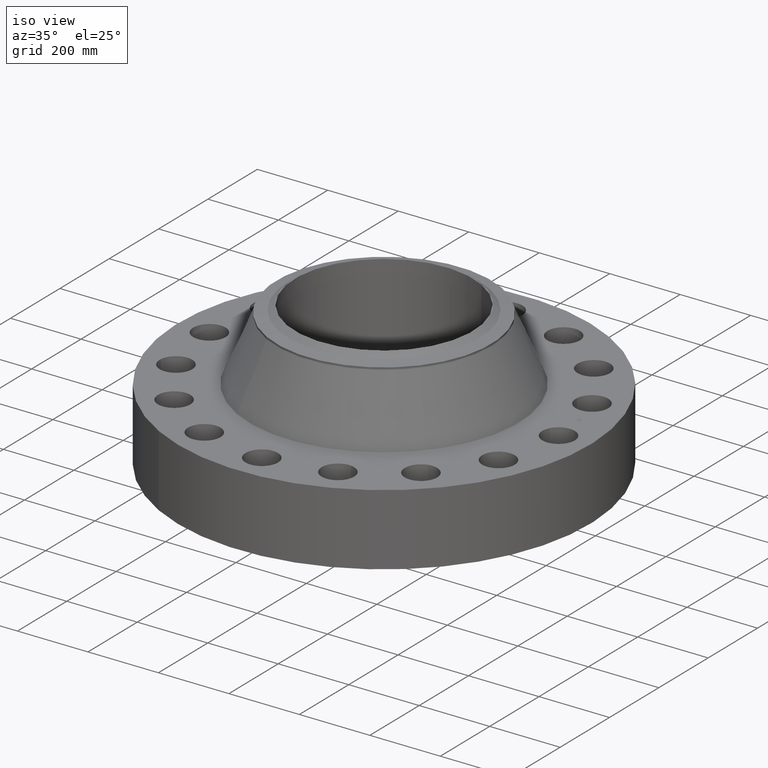
[diagram: clean part render]
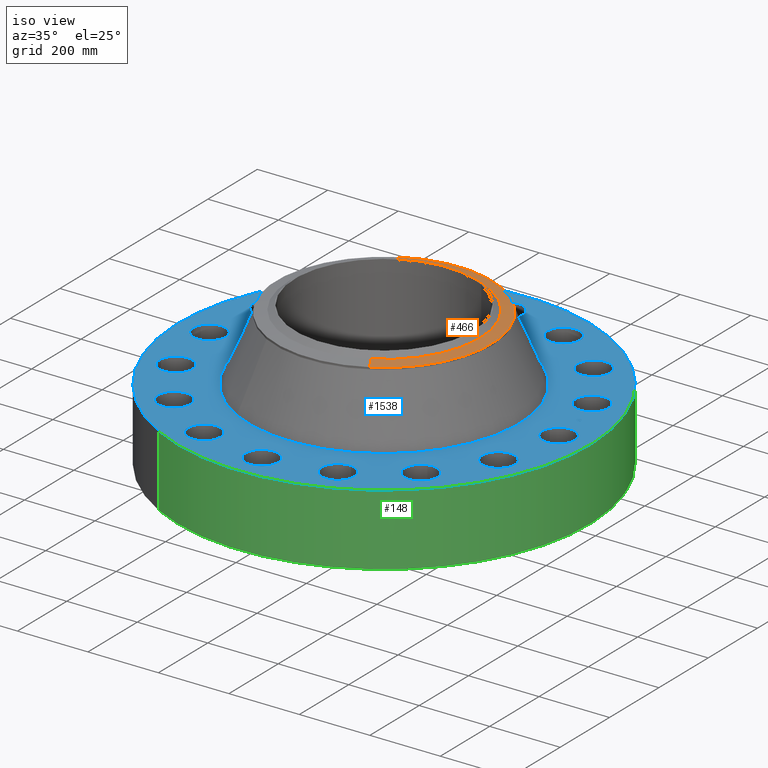
[diagram: same view with three faces highlighted in distinct colors, each labeled with its STEP entity id]
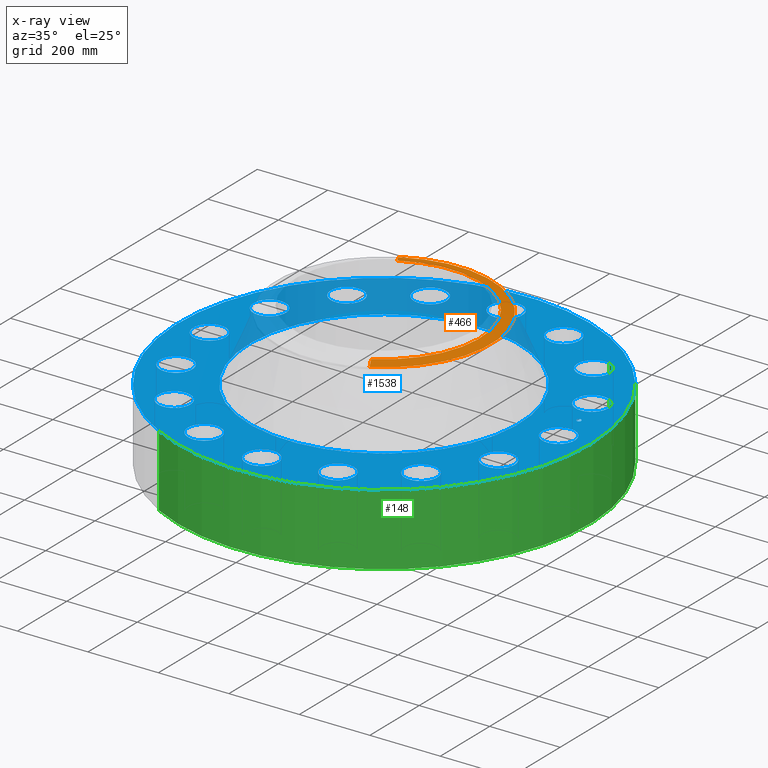
[diagram: x-ray of the same camera — body ghosted, the three highlighted faces saturated]
A machine part, iso view with three faces highlighted in distinct colors.
The next image is the same camera in x-ray (body ghosted, the three faces saturated) — at least one of them is partly hidden behind the body in this view.
Their STEP definitions:

[orange] entity #466 — the highlighted conical surface has half-angle 80 deg.
#270=AXIS2_PLACEMENT_3D('Circle Axis2P3D',#268,#269,$) ;
#297=AXIS2_PLACEMENT_3D('Circle Axis2P3D',#295,#296,$) ;
#311=AXIS2_PLACEMENT_3D('Cone Axis2P3D',#308,#309,#310) ;
#409=AXIS2_PLACEMENT_3D('Circle Axis2P3D',#407,#408,$) ;
#265=CARTESIAN_POINT('Vertex',(5.75310646327,10.5309907427,15.2547465941)) ;
#268=CARTESIAN_POINT('Axis2P3D Location',(0.,0.,15.2547465941)) ;
#272=CARTESIAN_POINT('Vertex',(5.75310646327,-10.5309907427,15.2547465941)) ;
#292=CARTESIAN_POINT('Vertex',(-5.75310646327,10.5309907427,15.2547465941)) ;
#295=CARTESIAN_POINT('Axis2P3D Location',(0.,0.,15.2547465941)) ;
#308=CARTESIAN_POINT('Axis2P3D Location',(0.,0.,15.4814160193)) ;
#313=CARTESIAN_POINT('Line Origine',(5.44495421449,-9.96692183492,15.3680813067)) ;
#317=CARTESIAN_POINT('Vertex',(5.13680196571,-9.40285292711,15.4814160193)) ;
#324=CARTESIAN_POINT('Vertex',(-5.13680196571,9.40285292711,15.4814160193)) ;
#327=CARTESIAN_POINT('Line Origine',(-5.44495421449,9.96692183492,15.3680813067)) ;
#407=CARTESIAN_POINT('Axis2P3D Location',(0.,0.,15.4814160193)) ;
#269=DIRECTION('Axis2P3D Direction',(0.,0.,-0.0393700787402)) ;
#296=DIRECTION('Axis2P3D Direction',(0.,0.,-0.0393700787402)) ;
#309=DIRECTION('Axis2P3D Direction',(-0.,-0.,-0.0393700787402)) ;
#310=DIRECTION('Axis2P3D XDirection',(-0.0188750212049,0.0345504945626,0.)) ;
#314=DIRECTION('Vector Direction',(0.0185882672208,-0.0340255949157,-0.00683654242783)) ;
#328=DIRECTION('Vector Direction',(-0.0185882672208,0.0340255949157,-0.00683654242783)) ;
#408=DIRECTION('Axis2P3D Direction',(0.,0.,0.0393700787402)) ;
#315=VECTOR('Line Direction',#314,0.0393700787402) ;
#329=VECTOR('Line Direction',#328,0.0393700787402) ;
#460=ORIENTED_EDGE('',*,*,#331,.F.) ;
#461=ORIENTED_EDGE('',*,*,#411,.F.) ;
#462=ORIENTED_EDGE('',*,*,#319,.T.) ;
#463=ORIENTED_EDGE('',*,*,#274,.T.) ;
#464=ORIENTED_EDGE('',*,*,#299,.F.) ;
#466=ADVANCED_FACE('PartBody',(#465),#312,.T.) ;
#271=CIRCLE('generated circle',#270,12.) ;
#298=CIRCLE('generated circle',#297,12.) ;
#410=CIRCLE('generated circle',#409,10.71449381) ;
#312=CONICAL_SURFACE('Cone',#311,10.71449381,1.3962634016) ;
#274=EDGE_CURVE('',#273,#266,#271,.F.) ;
#299=EDGE_CURVE('',#293,#266,#298,.T.) ;
#319=EDGE_CURVE('',#318,#273,#316,.T.) ;
#331=EDGE_CURVE('',#325,#293,#330,.T.) ;
#411=EDGE_CURVE('',#318,#325,#410,.T.) ;
#459=EDGE_LOOP('',(#460,#461,#462,#463,#464)) ;
#465=FACE_OUTER_BOUND('',#459,.T.) ;
#316=LINE('Line',#313,#315) ;
#330=LINE('Line',#327,#329) ;
#266=VERTEX_POINT('',#265) ;
#273=VERTEX_POINT('',#272) ;
#293=VERTEX_POINT('',#292) ;
#318=VERTEX_POINT('',#317) ;
#325=VERTEX_POINT('',#324) ;

[blue] entity #1538 — the highlighted planar face has unit normal (0, 0, -1).
#65=AXIS2_PLACEMENT_3D('Circle Axis2P3D',#63,#64,$) ;
#82=AXIS2_PLACEMENT_3D('Circle Axis2P3D',#80,#81,$) ;
#115=AXIS2_PLACEMENT_3D('Circle Axis2P3D',#113,#114,$) ;
#139=AXIS2_PLACEMENT_3D('Circle Axis2P3D',#137,#138,$) ;
#156=AXIS2_PLACEMENT_3D('Circle Axis2P3D',#154,#155,$) ;
#191=AXIS2_PLACEMENT_3D('Circle Axis2P3D',#189,#190,$) ;
#819=AXIS2_PLACEMENT_3D('Circle Axis2P3D',#817,#818,$) ;
#831=AXIS2_PLACEMENT_3D('Circle Axis2P3D',#829,#830,$) ;
#862=AXIS2_PLACEMENT_3D('Circle Axis2P3D',#860,#861,$) ;
#874=AXIS2_PLACEMENT_3D('Circle Axis2P3D',#872,#873,$) ;
#905=AXIS2_PLACEMENT_3D('Circle Axis2P3D',#903,#904,$) ;
#917=AXIS2_PLACEMENT_3D('Circle Axis2P3D',#915,#916,$) ;
#948=AXIS2_PLACEMENT_3D('Circle Axis2P3D',#946,#947,$) ;
#960=AXIS2_PLACEMENT_3D('Circle Axis2P3D',#958,#959,$) ;
#991=AXIS2_PLACEMENT_3D('Circle Axis2P3D',#989,#990,$) ;
#1003=AXIS2_PLACEMENT_3D('Circle Axis2P3D',#1001,#1002,$) ;
#1034=AXIS2_PLACEMENT_3D('Circle Axis2P3D',#1032,#1033,$) ;
#1046=AXIS2_PLACEMENT_3D('Circle Axis2P3D',#1044,#1045,$) ;
#1077=AXIS2_PLACEMENT_3D('Circle Axis2P3D',#1075,#1076,$) ;
#1089=AXIS2_PLACEMENT_3D('Circle Axis2P3D',#1087,#1088,$) ;
#1120=AXIS2_PLACEMENT_3D('Circle Axis2P3D',#1118,#1119,$) ;
#1132=AXIS2_PLACEMENT_3D('Circle Axis2P3D',#1130,#1131,$) ;
#1163=AXIS2_PLACEMENT_3D('Circle Axis2P3D',#1161,#1162,$) ;
#1175=AXIS2_PLACEMENT_3D('Circle Axis2P3D',#1173,#1174,$) ;
#1206=AXIS2_PLACEMENT_3D('Circle Axis2P3D',#1204,#1205,$) ;
#1218=AXIS2_PLACEMENT_3D('Circle Axis2P3D',#1216,#1217,$) ;
#1249=AXIS2_PLACEMENT_3D('Circle Axis2P3D',#1247,#1248,$) ;
#1261=AXIS2_PLACEMENT_3D('Circle Axis2P3D',#1259,#1260,$) ;
#1292=AXIS2_PLACEMENT_3D('Circle Axis2P3D',#1290,#1291,$) ;
#1304=AXIS2_PLACEMENT_3D('Circle Axis2P3D',#1302,#1303,$) ;
#1335=AXIS2_PLACEMENT_3D('Circle Axis2P3D',#1333,#1334,$) ;
#1347=AXIS2_PLACEMENT_3D('Circle Axis2P3D',#1345,#1346,$) ;
#1378=AXIS2_PLACEMENT_3D('Circle Axis2P3D',#1376,#1377,$) ;
#1390=AXIS2_PLACEMENT_3D('Circle Axis2P3D',#1388,#1389,$) ;
#1421=AXIS2_PLACEMENT_3D('Circle Axis2P3D',#1419,#1420,$) ;
#1433=AXIS2_PLACEMENT_3D('Circle Axis2P3D',#1431,#1432,$) ;
#1446=AXIS2_PLACEMENT_3D('Plane Axis2P3D',#1443,#1444,#1445) ;
#1522=AXIS2_PLACEMENT_3D('Circle Axis2P3D',#1520,#1521,$) ;
#1531=AXIS2_PLACEMENT_3D('Circle Axis2P3D',#1529,#1530,$) ;
#46=CARTESIAN_POINT('Vertex',(17.9071876502,0.87015735257,8.00000000003)) ;
#60=CARTESIAN_POINT('Vertex',(21.0928123499,-0.87015735257,8.00000000003)) ;
#63=CARTESIAN_POINT('Axis2P3D Location',(19.5000000001,0.,8.00000000003)) ;
#80=CARTESIAN_POINT('Axis2P3D Location',(19.5000000001,0.,8.00000000003)) ;
#110=CARTESIAN_POINT('Vertex',(-11.0267873879,-20.1843989236,8.00000000003)) ;
#113=CARTESIAN_POINT('Axis2P3D Location',(0.,0.,8.00000000003)) ;
#117=CARTESIAN_POINT('Vertex',(11.0267873879,20.1843989236,8.00000000003)) ;
#137=CARTESIAN_POINT('Axis2P3D Location',(0.,0.,8.00000000003)) ;
#154=CARTESIAN_POINT('Axis2P3D Location',(0.,0.,8.00000000003)) ;
#158=CARTESIAN_POINT('Vertex',(7.22935831592,13.2332516331,8.00000000003)) ;
#160=CARTESIAN_POINT('Vertex',(-7.22935831592,-13.2332516331,8.00000000003)) ;
#189=CARTESIAN_POINT('Axis2P3D Location',(0.,0.,8.00000000003)) ;
#807=CARTESIAN_POINT('Vertex',(-16.8770789573,6.0488634659,8.00000000003)) ;
#814=CARTESIAN_POINT('Vertex',(-19.1542228108,8.8757903964,8.00000000003)) ;
#817=CARTESIAN_POINT('Axis2P3D Location',(-18.015650884,7.46232693115,8.00000000003)) ;
#829=CARTESIAN_POINT('Axis2P3D Location',(-18.015650884,7.46232693115,8.00000000003)) ;
#850=CARTESIAN_POINT('Vertex',(13.2775879842,-12.0469996548,8.00000000003)) ;
#857=CARTESIAN_POINT('Vertex',(14.2995764822,-15.5301648116,8.00000000003)) ;
#860=CARTESIAN_POINT('Axis2P3D Location',(13.7885822332,-13.7885822332,8.00000000003)) ;
#872=CARTESIAN_POINT('Axis2P3D Location',(13.7885822332,-13.7885822332,8.00000000003)) ;
#893=CARTESIAN_POINT('Vertex',(-13.2775879842,12.0469996548,8.00000000003)) ;
#900=CARTESIAN_POINT('Vertex',(-14.2995764822,15.5301648116,8.00000000003)) ;
#903=CARTESIAN_POINT('Axis2P3D Location',(-13.7885822332,13.7885822332,8.00000000003)) ;
#915=CARTESIAN_POINT('Axis2P3D Location',(-13.7885822332,13.7885822332,8.00000000003)) ;
#936=CARTESIAN_POINT('Vertex',(7.6567046021,-16.2110893525,8.00000000003)) ;
#943=CARTESIAN_POINT('Vertex',(7.26794926019,-19.8202124156,8.00000000003)) ;
#946=CARTESIAN_POINT('Axis2P3D Location',(7.46232693115,-18.015650884,8.00000000003)) ;
#958=CARTESIAN_POINT('Axis2P3D Location',(7.46232693115,-18.015650884,8.00000000003)) ;
#979=CARTESIAN_POINT('Vertex',(-7.6567046021,16.2110893525,8.00000000003)) ;
#986=CARTESIAN_POINT('Vertex',(-7.26794926019,19.8202124156,8.00000000003)) ;
#989=CARTESIAN_POINT('Axis2P3D Location',(-7.46232693115,18.015650884,8.00000000003)) ;
#1001=CARTESIAN_POINT('Axis2P3D Location',(-7.46232693115,18.015650884,8.00000000003)) ;
#1022=CARTESIAN_POINT('Vertex',(0.87015735257,-17.9071876502,8.00000000003)) ;
#1029=CARTESIAN_POINT('Vertex',(-0.87015735257,-21.0928123499,8.00000000003)) ;
#1032=CARTESIAN_POINT('Axis2P3D Location',(-1.04389924724E-015,-19.5000000001,8.00000000003)) ;
#1044=CARTESIAN_POINT('Axis2P3D Location',(-1.04389924724E-015,-19.5000000001,8.00000000003)) ;
#1065=CARTESIAN_POINT('Vertex',(-0.87015735257,17.9071876502,8.00000000003)) ;
#1072=CARTESIAN_POINT('Vertex',(0.87015735257,21.0928123499,8.00000000003)) ;
#1075=CARTESIAN_POINT('Axis2P3D Location',(-1.34416201111E-015,19.5000000001,8.00000000003)) ;
#1087=CARTESIAN_POINT('Axis2P3D Location',(-1.34416201111E-015,19.5000000001,8.00000000003)) ;
#1108=CARTESIAN_POINT('Vertex',(-6.0488634659,-16.8770789573,8.00000000003)) ;
#1115=CARTESIAN_POINT('Vertex',(-8.8757903964,-19.1542228108,8.00000000003)) ;
#1118=CARTESIAN_POINT('Axis2P3D Location',(-7.46232693115,-18.015650884,8.00000000003)) ;
#1130=CARTESIAN_POINT('Axis2P3D Location',(-7.46232693115,-18.015650884,8.00000000003)) ;
#1151=CARTESIAN_POINT('Vertex',(6.0488634659,16.8770789573,8.00000000003)) ;
#1158=CARTESIAN_POINT('Vertex',(8.8757903964,19.1542228108,8.00000000003)) ;
#1161=CARTESIAN_POINT('Axis2P3D Location',(7.46232693115,18.015650884,8.00000000003)) ;
#1173=CARTESIAN_POINT('Axis2P3D Location',(7.46232693115,18.015650884,8.00000000003)) ;
#1194=CARTESIAN_POINT('Vertex',(-12.0469996548,-13.2775879842,8.00000000003)) ;
#1201=CARTESIAN_POINT('Vertex',(-15.5301648116,-14.2995764822,8.00000000003)) ;
#1204=CARTESIAN_POINT('Axis2P3D Location',(-13.7885822332,-13.7885822332,8.00000000003)) ;
#1216=CARTESIAN_POINT('Axis2P3D Location',(-13.7885822332,-13.7885822332,8.00000000003)) ;
#1237=CARTESIAN_POINT('Vertex',(12.0469996548,13.2775879842,8.00000000003)) ;
#1244=CARTESIAN_POINT('Vertex',(15.5301648116,14.2995764822,8.00000000003)) ;
#1247=CARTESIAN_POINT('Axis2P3D Location',(13.7885822332,13.7885822332,8.00000000003)) ;
#1259=CARTESIAN_POINT('Axis2P3D Location',(13.7885822332,13.7885822332,8.00000000003)) ;
#1280=CARTESIAN_POINT('Vertex',(-16.2110893525,-7.6567046021,8.00000000003)) ;
#1287=CARTESIAN_POINT('Vertex',(-19.8202124156,-7.26794926019,8.00000000003)) ;
#1290=CARTESIAN_POINT('Axis2P3D Location',(-18.015650884,-7.46232693115,8.00000000003)) ;
#1302=CARTESIAN_POINT('Axis2P3D Location',(-18.015650884,-7.46232693115,8.00000000003)) ;
#1323=CARTESIAN_POINT('Vertex',(16.2110893525,7.6567046021,8.00000000003)) ;
#1330=CARTESIAN_POINT('Vertex',(19.8202124156,7.26794926019,8.00000000003)) ;
#1333=CARTESIAN_POINT('Axis2P3D Location',(18.015650884,7.46232693115,8.00000000003)) ;
#1345=CARTESIAN_POINT('Axis2P3D Location',(18.015650884,7.46232693115,8.00000000003)) ;
#1366=CARTESIAN_POINT('Vertex',(-17.9071876502,-0.87015735257,8.00000000003)) ;
#1373=CARTESIAN_POINT('Vertex',(-21.0928123499,0.87015735257,8.00000000003)) ;
#1376=CARTESIAN_POINT('Axis2P3D Location',(-19.5000000001,-2.38806125835E-015,8.00000000003)) ;
#1388=CARTESIAN_POINT('Axis2P3D Location',(-19.5000000001,-2.38806125835E-015,8.00000000003)) ;
#1409=CARTESIAN_POINT('Vertex',(16.8770789573,-6.0488634659,8.00000000003)) ;
#1416=CARTESIAN_POINT('Vertex',(19.1542228108,-8.8757903964,8.00000000003)) ;
#1419=CARTESIAN_POINT('Axis2P3D Location',(18.015650884,-7.46232693115,8.00000000003)) ;
#1431=CARTESIAN_POINT('Axis2P3D Location',(18.015650884,-7.46232693115,8.00000000003)) ;
#1443=CARTESIAN_POINT('Axis2P3D Location',(0.,23.0000000001,8.00000000003)) ;
#1520=CARTESIAN_POINT('Axis2P3D Location',(19.1253129679,3.80426127933,8.00000000003)) ;
#1524=CARTESIAN_POINT('Vertex',(19.0770281132,4.04700563623,8.00000000003)) ;
#1526=CARTESIAN_POINT('Vertex',(19.1735978226,3.56151692243,8.00000000003)) ;
#1529=CARTESIAN_POINT('Axis2P3D Location',(19.1253129679,3.80426127933,8.00000000003)) ;
#64=DIRECTION('Axis2P3D Direction',(0.,-0.,-0.0393700787402)) ;
#81=DIRECTION('Axis2P3D Direction',(0.,-0.,-0.0393700787402)) ;
#114=DIRECTION('Axis2P3D Direction',(0.,0.,-0.0393700787402)) ;
#138=DIRECTION('Axis2P3D Direction',(0.,0.,-0.0393700787402)) ;
#155=DIRECTION('Axis2P3D Direction',(0.,0.,-0.0393700787402)) ;
#190=DIRECTION('Axis2P3D Direction',(0.,0.,-0.0393700787402)) ;
#818=DIRECTION('Axis2P3D Direction',(0.,0.,-0.0393700787402)) ;
#830=DIRECTION('Axis2P3D Direction',(0.,0.,-0.0393700787402)) ;
#861=DIRECTION('Axis2P3D Direction',(0.,-0.,-0.0393700787402)) ;
#873=DIRECTION('Axis2P3D Direction',(0.,-0.,-0.0393700787402)) ;
#904=DIRECTION('Axis2P3D Direction',(0.,0.,-0.0393700787402)) ;
#916=DIRECTION('Axis2P3D Direction',(0.,0.,-0.0393700787402)) ;
#947=DIRECTION('Axis2P3D Direction',(0.,-0.,-0.0393700787402)) ;
#959=DIRECTION('Axis2P3D Direction',(0.,-0.,-0.0393700787402)) ;
#990=DIRECTION('Axis2P3D Direction',(0.,0.,-0.0393700787402)) ;
#1002=DIRECTION('Axis2P3D Direction',(0.,0.,-0.0393700787402)) ;
#1033=DIRECTION('Axis2P3D Direction',(0.,-0.,-0.0393700787402)) ;
#1045=DIRECTION('Axis2P3D Direction',(0.,-0.,-0.0393700787402)) ;
#1076=DIRECTION('Axis2P3D Direction',(0.,0.,-0.0393700787402)) ;
#1088=DIRECTION('Axis2P3D Direction',(0.,0.,-0.0393700787402)) ;
#1119=DIRECTION('Axis2P3D Direction',(-0.,0.,-0.0393700787402)) ;
#1131=DIRECTION('Axis2P3D Direction',(-0.,0.,-0.0393700787402)) ;
#1162=DIRECTION('Axis2P3D Direction',(0.,0.,-0.0393700787402)) ;
#1174=DIRECTION('Axis2P3D Direction',(0.,0.,-0.0393700787402)) ;
#1205=DIRECTION('Axis2P3D Direction',(-0.,0.,-0.0393700787402)) ;
#1217=DIRECTION('Axis2P3D Direction',(-0.,0.,-0.0393700787402)) ;
#1248=DIRECTION('Axis2P3D Direction',(0.,0.,-0.0393700787402)) ;
#1260=DIRECTION('Axis2P3D Direction',(0.,0.,-0.0393700787402)) ;
#1291=DIRECTION('Axis2P3D Direction',(-0.,0.,-0.0393700787402)) ;
#1303=DIRECTION('Axis2P3D Direction',(-0.,0.,-0.0393700787402)) ;
#1334=DIRECTION('Axis2P3D Direction',(0.,0.,-0.0393700787402)) ;
#1346=DIRECTION('Axis2P3D Direction',(0.,0.,-0.0393700787402)) ;
#1377=DIRECTION('Axis2P3D Direction',(-0.,0.,-0.0393700787402)) ;
#1389=DIRECTION('Axis2P3D Direction',(-0.,0.,-0.0393700787402)) ;
#1420=DIRECTION('Axis2P3D Direction',(0.,-0.,-0.0393700787402)) ;
#1432=DIRECTION('Axis2P3D Direction',(0.,-0.,-0.0393700787402)) ;
#1444=DIRECTION('Axis2P3D Direction',(0.,0.,-0.0393700787402)) ;
#1445=DIRECTION('Axis2P3D XDirection',(0.0393700787402,0.,0.)) ;
#1521=DIRECTION('Axis2P3D Direction',(0.,0.,-0.0393700787402)) ;
#1530=DIRECTION('Axis2P3D Direction',(0.,0.,-0.0393700787402)) ;
#1449=ORIENTED_EDGE('',*,*,#141,.F.) ;
#1450=ORIENTED_EDGE('',*,*,#119,.F.) ;
#1453=ORIENTED_EDGE('',*,*,#67,.T.) ;
#1454=ORIENTED_EDGE('',*,*,#84,.T.) ;
#1457=ORIENTED_EDGE('',*,*,#193,.T.) ;
#1458=ORIENTED_EDGE('',*,*,#162,.T.) ;
#1461=ORIENTED_EDGE('',*,*,#1435,.T.) ;
#1462=ORIENTED_EDGE('',*,*,#1423,.T.) ;
#1465=ORIENTED_EDGE('',*,*,#876,.T.) ;
#1466=ORIENTED_EDGE('',*,*,#864,.T.) ;
#1469=ORIENTED_EDGE('',*,*,#962,.T.) ;
#1470=ORIENTED_EDGE('',*,*,#950,.T.) ;
#1473=ORIENTED_EDGE('',*,*,#1048,.T.) ;
#1474=ORIENTED_EDGE('',*,*,#1036,.T.) ;
#1477=ORIENTED_EDGE('',*,*,#1134,.T.) ;
#1478=ORIENTED_EDGE('',*,*,#1122,.T.) ;
#1481=ORIENTED_EDGE('',*,*,#1220,.T.) ;
#1482=ORIENTED_EDGE('',*,*,#1208,.T.) ;
#1485=ORIENTED_EDGE('',*,*,#1306,.T.) ;
#1486=ORIENTED_EDGE('',*,*,#1294,.T.) ;
#1489=ORIENTED_EDGE('',*,*,#1392,.T.) ;
#1490=ORIENTED_EDGE('',*,*,#1380,.T.) ;
#1493=ORIENTED_EDGE('',*,*,#833,.T.) ;
#1494=ORIENTED_EDGE('',*,*,#821,.T.) ;
#1497=ORIENTED_EDGE('',*,*,#919,.T.) ;
#1498=ORIENTED_EDGE('',*,*,#907,.T.) ;
#1501=ORIENTED_EDGE('',*,*,#1005,.T.) ;
#1502=ORIENTED_EDGE('',*,*,#993,.T.) ;
#1505=ORIENTED_EDGE('',*,*,#1091,.T.) ;
#1506=ORIENTED_EDGE('',*,*,#1079,.T.) ;
#1509=ORIENTED_EDGE('',*,*,#1177,.T.) ;
#1510=ORIENTED_EDGE('',*,*,#1165,.T.) ;
#1513=ORIENTED_EDGE('',*,*,#1263,.T.) ;
#1514=ORIENTED_EDGE('',*,*,#1251,.T.) ;
#1517=ORIENTED_EDGE('',*,*,#1349,.T.) ;
#1518=ORIENTED_EDGE('',*,*,#1337,.T.) ;
#1535=ORIENTED_EDGE('',*,*,#1528,.T.) ;
#1536=ORIENTED_EDGE('',*,*,#1533,.T.) ;
#1455=FACE_BOUND('',#1452,.T.) ;
#1459=FACE_BOUND('',#1456,.T.) ;
#1463=FACE_BOUND('',#1460,.T.) ;
#1467=FACE_BOUND('',#1464,.T.) ;
#1471=FACE_BOUND('',#1468,.T.) ;
#1475=FACE_BOUND('',#1472,.T.) ;
#1479=FACE_BOUND('',#1476,.T.) ;
#1483=FACE_BOUND('',#1480,.T.) ;
#1487=FACE_BOUND('',#1484,.T.) ;
#1491=FACE_BOUND('',#1488,.T.) ;
#1495=FACE_BOUND('',#1492,.T.) ;
#1499=FACE_BOUND('',#1496,.T.) ;
#1503=FACE_BOUND('',#1500,.T.) ;
#1507=FACE_BOUND('',#1504,.T.) ;
#1511=FACE_BOUND('',#1508,.T.) ;
#1515=FACE_BOUND('',#1512,.T.) ;
#1519=FACE_BOUND('',#1516,.T.) ;
#1537=FACE_BOUND('',#1534,.T.) ;
#1538=ADVANCED_FACE('PartBody',(#1451,#1455,#1459,#1463,#1467,#1471,#1475,#1479,#1483,#1487,#1491,#1495,#1499,#1503,#1507,#1511,#1515,#1519,#1537),#1447,.F.) ;
#66=CIRCLE('generated circle',#65,1.81500000001) ;
#83=CIRCLE('generated circle',#82,1.81500000001) ;
#116=CIRCLE('generated circle',#115,23.0000000001) ;
#140=CIRCLE('generated circle',#139,23.0000000001) ;
#157=CIRCLE('generated circle',#156,15.0792098747) ;
#192=CIRCLE('generated circle',#191,15.0792098747) ;
#820=CIRCLE('generated circle',#819,1.81500000001) ;
#832=CIRCLE('generated circle',#831,1.81500000001) ;
#863=CIRCLE('generated circle',#862,1.81500000001) ;
#875=CIRCLE('generated circle',#874,1.81500000001) ;
#906=CIRCLE('generated circle',#905,1.81500000001) ;
#918=CIRCLE('generated circle',#917,1.81500000001) ;
#949=CIRCLE('generated circle',#948,1.81500000001) ;
#961=CIRCLE('generated circle',#960,1.81500000001) ;
#992=CIRCLE('generated circle',#991,1.81500000001) ;
#1004=CIRCLE('generated circle',#1003,1.81500000001) ;
#1035=CIRCLE('generated circle',#1034,1.81500000001) ;
#1047=CIRCLE('generated circle',#1046,1.81500000001) ;
#1078=CIRCLE('generated circle',#1077,1.81500000001) ;
#1090=CIRCLE('generated circle',#1089,1.81500000001) ;
#1121=CIRCLE('generated circle',#1120,1.81500000001) ;
#1133=CIRCLE('generated circle',#1132,1.81500000001) ;
#1164=CIRCLE('generated circle',#1163,1.81500000001) ;
#1176=CIRCLE('generated circle',#1175,1.81500000001) ;
#1207=CIRCLE('generated circle',#1206,1.81500000001) ;
#1219=CIRCLE('generated circle',#1218,1.81500000001) ;
#1250=CIRCLE('generated circle',#1249,1.81500000001) ;
#1262=CIRCLE('generated circle',#1261,1.81500000001) ;
#1293=CIRCLE('generated circle',#1292,1.81500000001) ;
#1305=CIRCLE('generated circle',#1304,1.81500000001) ;
#1336=CIRCLE('generated circle',#1335,1.81500000001) ;
#1348=CIRCLE('generated circle',#1347,1.81500000001) ;
#1379=CIRCLE('generated circle',#1378,1.81500000001) ;
#1391=CIRCLE('generated circle',#1390,1.81500000001) ;
#1422=CIRCLE('generated circle',#1421,1.81500000001) ;
#1434=CIRCLE('generated circle',#1433,1.81500000001) ;
#1523=CIRCLE('generated circle',#1522,0.247500000001) ;
#1532=CIRCLE('generated circle',#1531,0.247500000001) ;
#67=EDGE_CURVE('',#47,#61,#66,.T.) ;
#84=EDGE_CURVE('',#61,#47,#83,.T.) ;
#119=EDGE_CURVE('',#111,#118,#116,.T.) ;
#141=EDGE_CURVE('',#118,#111,#140,.T.) ;
#162=EDGE_CURVE('',#159,#161,#157,.T.) ;
#193=EDGE_CURVE('',#161,#159,#192,.T.) ;
#821=EDGE_CURVE('',#808,#815,#820,.T.) ;
#833=EDGE_CURVE('',#815,#808,#832,.T.) ;
#864=EDGE_CURVE('',#851,#858,#863,.T.) ;
#876=EDGE_CURVE('',#858,#851,#875,.T.) ;
#907=EDGE_CURVE('',#894,#901,#906,.T.) ;
#919=EDGE_CURVE('',#901,#894,#918,.T.) ;
#950=EDGE_CURVE('',#937,#944,#949,.T.) ;
#962=EDGE_CURVE('',#944,#937,#961,.T.) ;
#993=EDGE_CURVE('',#980,#987,#992,.T.) ;
#1005=EDGE_CURVE('',#987,#980,#1004,.T.) ;
#1036=EDGE_CURVE('',#1023,#1030,#1035,.T.) ;
#1048=EDGE_CURVE('',#1030,#1023,#1047,.T.) ;
#1079=EDGE_CURVE('',#1066,#1073,#1078,.T.) ;
#1091=EDGE_CURVE('',#1073,#1066,#1090,.T.) ;
#1122=EDGE_CURVE('',#1109,#1116,#1121,.T.) ;
#1134=EDGE_CURVE('',#1116,#1109,#1133,.T.) ;
#1165=EDGE_CURVE('',#1152,#1159,#1164,.T.) ;
#1177=EDGE_CURVE('',#1159,#1152,#1176,.T.) ;
#1208=EDGE_CURVE('',#1195,#1202,#1207,.T.) ;
#1220=EDGE_CURVE('',#1202,#1195,#1219,.T.) ;
#1251=EDGE_CURVE('',#1238,#1245,#1250,.T.) ;
#1263=EDGE_CURVE('',#1245,#1238,#1262,.T.) ;
#1294=EDGE_CURVE('',#1281,#1288,#1293,.T.) ;
#1306=EDGE_CURVE('',#1288,#1281,#1305,.T.) ;
#1337=EDGE_CURVE('',#1324,#1331,#1336,.T.) ;
#1349=EDGE_CURVE('',#1331,#1324,#1348,.T.) ;
#1380=EDGE_CURVE('',#1367,#1374,#1379,.T.) ;
#1392=EDGE_CURVE('',#1374,#1367,#1391,.T.) ;
#1423=EDGE_CURVE('',#1410,#1417,#1422,.T.) ;
#1435=EDGE_CURVE('',#1417,#1410,#1434,.T.) ;
#1528=EDGE_CURVE('',#1525,#1527,#1523,.T.) ;
#1533=EDGE_CURVE('',#1527,#1525,#1532,.T.) ;
#1448=EDGE_LOOP('',(#1449,#1450)) ;
#1452=EDGE_LOOP('',(#1453,#1454)) ;
#1456=EDGE_LOOP('',(#1457,#1458)) ;
#1460=EDGE_LOOP('',(#1461,#1462)) ;
#1464=EDGE_LOOP('',(#1465,#1466)) ;
#1468=EDGE_LOOP('',(#1469,#1470)) ;
#1472=EDGE_LOOP('',(#1473,#1474)) ;
#1476=EDGE_LOOP('',(#1477,#1478)) ;
#1480=EDGE_LOOP('',(#1481,#1482)) ;
#1484=EDGE_LOOP('',(#1485,#1486)) ;
#1488=EDGE_LOOP('',(#1489,#1490)) ;
#1492=EDGE_LOOP('',(#1493,#1494)) ;
#1496=EDGE_LOOP('',(#1497,#1498)) ;
#1500=EDGE_LOOP('',(#1501,#1502)) ;
#1504=EDGE_LOOP('',(#1505,#1506)) ;
#1508=EDGE_LOOP('',(#1509,#1510)) ;
#1512=EDGE_LOOP('',(#1513,#1514)) ;
#1516=EDGE_LOOP('',(#1517,#1518)) ;
#1534=EDGE_LOOP('',(#1535,#1536)) ;
#1451=FACE_OUTER_BOUND('',#1448,.T.) ;
#1447=PLANE('',#1446) ;
#47=VERTEX_POINT('',#46) ;
#61=VERTEX_POINT('',#60) ;
#111=VERTEX_POINT('',#110) ;
#118=VERTEX_POINT('',#117) ;
#159=VERTEX_POINT('',#158) ;
#161=VERTEX_POINT('',#160) ;
#808=VERTEX_POINT('',#807) ;
#815=VERTEX_POINT('',#814) ;
#851=VERTEX_POINT('',#850) ;
#858=VERTEX_POINT('',#857) ;
#894=VERTEX_POINT('',#893) ;
#901=VERTEX_POINT('',#900) ;
#937=VERTEX_POINT('',#936) ;
#944=VERTEX_POINT('',#943) ;
#980=VERTEX_POINT('',#979) ;
#987=VERTEX_POINT('',#986) ;
#1023=VERTEX_POINT('',#1022) ;
#1030=VERTEX_POINT('',#1029) ;
#1066=VERTEX_POINT('',#1065) ;
#1073=VERTEX_POINT('',#1072) ;
#1109=VERTEX_POINT('',#1108) ;
#1116=VERTEX_POINT('',#1115) ;
#1152=VERTEX_POINT('',#1151) ;
#1159=VERTEX_POINT('',#1158) ;
#1195=VERTEX_POINT('',#1194) ;
#1202=VERTEX_POINT('',#1201) ;
#1238=VERTEX_POINT('',#1237) ;
#1245=VERTEX_POINT('',#1244) ;
#1281=VERTEX_POINT('',#1280) ;
#1288=VERTEX_POINT('',#1287) ;
#1324=VERTEX_POINT('',#1323) ;
#1331=VERTEX_POINT('',#1330) ;
#1367=VERTEX_POINT('',#1366) ;
#1374=VERTEX_POINT('',#1373) ;
#1410=VERTEX_POINT('',#1409) ;
#1417=VERTEX_POINT('',#1416) ;
#1525=VERTEX_POINT('',#1524) ;
#1527=VERTEX_POINT('',#1526) ;

[green] entity #148 — the highlighted cylindrical surface (partial cylindrical patch) has radius 584.2 mm, axis along (0, 0, -1).
#95=AXIS2_PLACEMENT_3D('Cylinder Axis2P3D',#92,#93,#94) ;
#134=AXIS2_PLACEMENT_3D('Circle Axis2P3D',#132,#133,$) ;
#139=AXIS2_PLACEMENT_3D('Circle Axis2P3D',#137,#138,$) ;
#92=CARTESIAN_POINT('Axis2P3D Location',(0.,0.,8.00000000003)) ;
#101=CARTESIAN_POINT('Vertex',(-11.0267873879,-20.1843989236,2.23792987641E-015)) ;
#103=CARTESIAN_POINT('Vertex',(11.0267873879,20.1843989236,2.23792987641E-015)) ;
#106=CARTESIAN_POINT('Line Origine',(-11.0267873879,-20.1843989236,4.00000000002)) ;
#110=CARTESIAN_POINT('Vertex',(-11.0267873879,-20.1843989236,8.00000000003)) ;
#117=CARTESIAN_POINT('Vertex',(11.0267873879,20.1843989236,8.00000000003)) ;
#120=CARTESIAN_POINT('Line Origine',(11.0267873879,20.1843989236,4.00000000002)) ;
#132=CARTESIAN_POINT('Axis2P3D Location',(0.,0.,2.23792987641E-015)) ;
#137=CARTESIAN_POINT('Axis2P3D Location',(0.,0.,8.00000000003)) ;
#93=DIRECTION('Axis2P3D Direction',(0.,0.,-0.0393700787402)) ;
#94=DIRECTION('Axis2P3D XDirection',(0.0188750212049,0.0345504945626,0.)) ;
#107=DIRECTION('Vector Direction',(0.,0.,-0.0393700787402)) ;
#121=DIRECTION('Vector Direction',(0.,0.,-0.0393700787402)) ;
#133=DIRECTION('Axis2P3D Direction',(0.,0.,-0.0393700787402)) ;
#138=DIRECTION('Axis2P3D Direction',(0.,0.,-0.0393700787402)) ;
#108=VECTOR('Line Direction',#107,0.0393700787402) ;
#122=VECTOR('Line Direction',#121,0.0393700787402) ;
#143=ORIENTED_EDGE('',*,*,#136,.F.) ;
#144=ORIENTED_EDGE('',*,*,#124,.T.) ;
#145=ORIENTED_EDGE('',*,*,#141,.T.) ;
#146=ORIENTED_EDGE('',*,*,#112,.F.) ;
#148=ADVANCED_FACE('PartBody',(#147),#96,.T.) ;
#135=CIRCLE('generated circle',#134,23.0000000001) ;
#140=CIRCLE('generated circle',#139,23.0000000001) ;
#96=CYLINDRICAL_SURFACE('generated cylinder',#95,23.0000000001) ;
#112=EDGE_CURVE('',#102,#111,#109,.F.) ;
#124=EDGE_CURVE('',#104,#118,#123,.F.) ;
#136=EDGE_CURVE('',#104,#102,#135,.T.) ;
#141=EDGE_CURVE('',#118,#111,#140,.T.) ;
#142=EDGE_LOOP('',(#143,#144,#145,#146)) ;
#147=FACE_OUTER_BOUND('',#142,.T.) ;
#109=LINE('Line',#106,#108) ;
#123=LINE('Line',#120,#122) ;
#102=VERTEX_POINT('',#101) ;
#104=VERTEX_POINT('',#103) ;
#111=VERTEX_POINT('',#110) ;
#118=VERTEX_POINT('',#117) ;